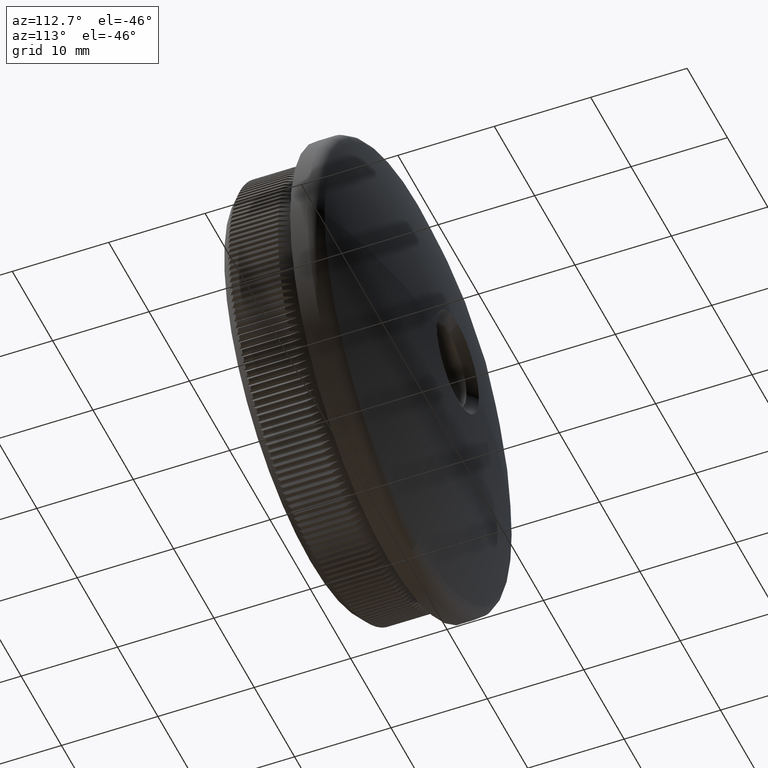
[diagram: clean part render]
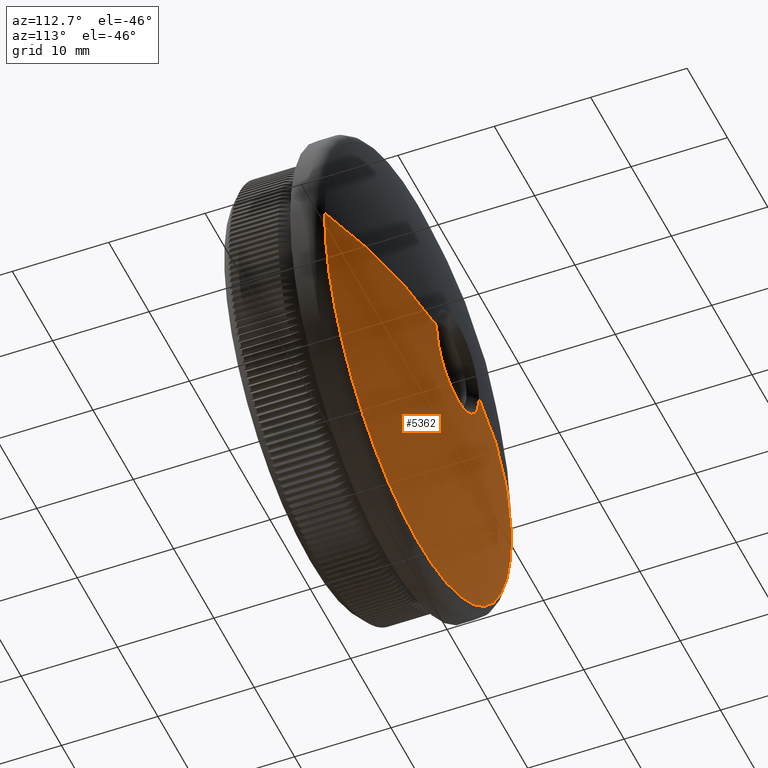
[diagram: same view with one face highlighted and labeled with its STEP entity id]
A machine part, auxiliary view. The second image highlights one B-rep face of the part: STEP entity #5362.
In plain terms, the highlighted spherical surface has radius 64.3949 mm.
Its self-contained STEP definition (entity closure, byte-faithful):
#140 = VERTEX_POINT ( 'NONE', #14389 ) ;
#435 = CARTESIAN_POINT ( 'NONE',  ( 0.0000000000000000000, 15.28647477270349200, 0.0000000000000000000 ) ) ;
#496 = ORIENTED_EDGE ( 'NONE', *, *, #3891, .T. ) ;
#1070 = DIRECTION ( 'NONE',  ( 0.0000000000000000000, 0.0000000000000000000, -1.000000000000000000 ) ) ;
#1923 = DIRECTION ( 'NONE',  ( 0.0000000000000000000, 1.000000000000000000, 0.0000000000000000000 ) ) ;
#2170 = FACE_OUTER_BOUND ( 'NONE', #27190, .T. ) ;
#2742 = AXIS2_PLACEMENT_3D ( 'NONE', #22849, #7168, #27478 ) ;
#2792 = VERTEX_POINT ( 'NONE', #16967 ) ;
#3595 = ORIENTED_EDGE ( 'NONE', *, *, #17049, .F. ) ;
#3642 = CARTESIAN_POINT ( 'NONE',  ( 0.0000000000000000000, -48.89494680851073800, 0.0000000000000000000 ) ) ;
#3891 = EDGE_CURVE ( 'NONE', #3961, #18623, #9353, .T. ) ;
#3961 = VERTEX_POINT ( 'NONE', #17654 ) ;
#4288 = AXIS2_PLACEMENT_3D ( 'NONE', #6040, #31539, #18929 ) ;
#5362 = ADVANCED_FACE ( 'NONE', ( #2170 ), #22030, .T. ) ;
#6005 = AXIS2_PLACEMENT_3D ( 'NONE', #435, #8038, #13175 ) ;
#6040 = CARTESIAN_POINT ( 'NONE',  ( 0.0000000000000000000, -48.89494680851073800, 0.0000000000000000000 ) ) ;
#6211 = DIRECTION ( 'NONE',  ( 0.0000000000000000000, 0.0000000000000000000, -1.000000000000000000 ) ) ;
#6903 = EDGE_CURVE ( 'NONE', #11069, #140, #14400, .T. ) ;
#7168 = DIRECTION ( 'NONE',  ( -0.0000000000000000000, -1.000000000000000000, -0.0000000000000000000 ) ) ;
#7422 = VERTEX_POINT ( 'NONE', #11112 ) ;
#7465 = CARTESIAN_POINT ( 'NONE',  ( -5.239684941423129200, 15.28647477270349200, 1.740827551892606700E-015 ) ) ;
#8038 = DIRECTION ( 'NONE',  ( -0.0000000000000000000, -1.000000000000000000, -0.0000000000000000000 ) ) ;
#9353 = CIRCLE ( 'NONE', #18330, 23.19018648117216600 ) ;
#10220 = ORIENTED_EDGE ( 'NONE', *, *, #32235, .T. ) ;
#11069 = VERTEX_POINT ( 'NONE', #7465 ) ;
#11112 = CARTESIAN_POINT ( 'NONE',  ( 5.239684941423129200, 15.28647477270349200, 0.0000000000000000000 ) ) ;
#13175 = DIRECTION ( 'NONE',  ( 0.0000000000000000000, 0.0000000000000000000, -1.000000000000000000 ) ) ;
#13434 = DIRECTION ( 'NONE',  ( -1.000000000000000000, 0.0000000000000000000, 0.0000000000000000000 ) ) ;
#14389 = CARTESIAN_POINT ( 'NONE',  ( 6.416763392054438900E-016, 15.28647477270349200, -5.239684941423142600 ) ) ;
#14400 = CIRCLE ( 'NONE', #6005, 5.239684941423129200 ) ;
#16912 = CIRCLE ( 'NONE', #2742, 5.239684941423129200 ) ;
#16967 = CARTESIAN_POINT ( 'NONE',  ( 23.19018648117216600, 11.17937736945556400, 0.0000000000000000000 ) ) ;
#17049 = EDGE_CURVE ( 'NONE', #11069, #18623, #27960, .T. ) ;
#17654 = CARTESIAN_POINT ( 'NONE',  ( 0.0000000000000000000, 11.17937736945556700, -23.19018648117216600 ) ) ;
#18330 = AXIS2_PLACEMENT_3D ( 'NONE', #22438, #1923, #27186 ) ;
#18475 = DIRECTION ( 'NONE',  ( 1.224646799147353200E-016, -0.0000000000000000000, 1.000000000000000000 ) ) ;
#18623 = VERTEX_POINT ( 'NONE', #27379 ) ;
#18929 = DIRECTION ( 'NONE',  ( 1.000000000000000000, 0.0000000000000000000, 0.0000000000000000000 ) ) ;
#19289 = ORIENTED_EDGE ( 'NONE', *, *, #25983, .T. ) ;
#19551 = CIRCLE ( 'NONE', #25125, 64.39494680851073800 ) ;
#22030 = SPHERICAL_SURFACE ( 'NONE', #4288, 64.39494680851073800 ) ;
#22221 = CIRCLE ( 'NONE', #24925, 23.19018648117216600 ) ;
#22290 = ORIENTED_EDGE ( 'NONE', *, *, #30448, .T. ) ;
#22438 = CARTESIAN_POINT ( 'NONE',  ( 0.0000000000000000000, 11.17937736945556700, 0.0000000000000000000 ) ) ;
#22849 = CARTESIAN_POINT ( 'NONE',  ( 0.0000000000000000000, 15.28647477270349200, 0.0000000000000000000 ) ) ;
#23985 = CARTESIAN_POINT ( 'NONE',  ( 0.0000000000000000000, 11.17937736945556700, 0.0000000000000000000 ) ) ;
#24925 = AXIS2_PLACEMENT_3D ( 'NONE', #23985, #31522, #1070 ) ;
#25125 = AXIS2_PLACEMENT_3D ( 'NONE', #3642, #6211, #13434 ) ;
#25983 = EDGE_CURVE ( 'NONE', #140, #7422, #16912, .T. ) ;
#26091 = DIRECTION ( 'NONE',  ( 1.000000000000000000, 0.0000000000000000000, -1.224646799147353200E-016 ) ) ;
#27186 = DIRECTION ( 'NONE',  ( 0.0000000000000000000, 0.0000000000000000000, -1.000000000000000000 ) ) ;
#27190 = EDGE_LOOP ( 'NONE', ( #3595, #27647, #19289, #22290, #10220, #496 ) ) ;
#27379 = CARTESIAN_POINT ( 'NONE',  ( -23.19018648117216600, 11.17937736945556400, 2.839978764579771300E-015 ) ) ;
#27478 = DIRECTION ( 'NONE',  ( 0.0000000000000000000, 0.0000000000000000000, -1.000000000000000000 ) ) ;
#27647 = ORIENTED_EDGE ( 'NONE', *, *, #6903, .T. ) ;
#27960 = CIRCLE ( 'NONE', #32091, 64.39494680851073800 ) ;
#30448 = EDGE_CURVE ( 'NONE', #7422, #2792, #19551, .T. ) ;
#31406 = CARTESIAN_POINT ( 'NONE',  ( 0.0000000000000000000, -48.89494680851073800, 0.0000000000000000000 ) ) ;
#31522 = DIRECTION ( 'NONE',  ( 0.0000000000000000000, 1.000000000000000000, 0.0000000000000000000 ) ) ;
#31539 = DIRECTION ( 'NONE',  ( 0.0000000000000000000, 0.0000000000000000000, 1.000000000000000000 ) ) ;
#32091 = AXIS2_PLACEMENT_3D ( 'NONE', #31406, #18475, #26091 ) ;
#32235 = EDGE_CURVE ( 'NONE', #2792, #3961, #22221, .T. ) ;